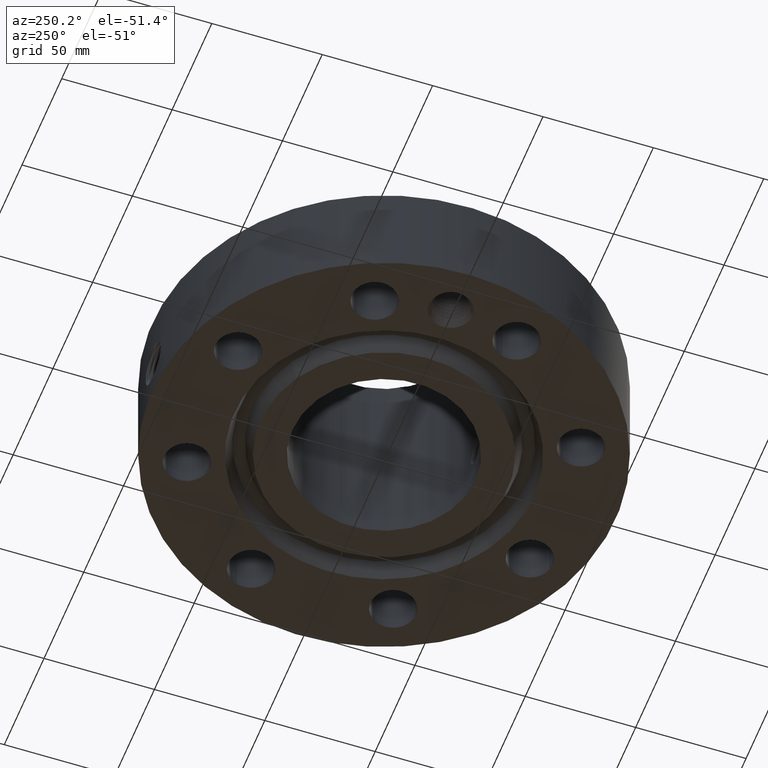
[diagram: clean part render]
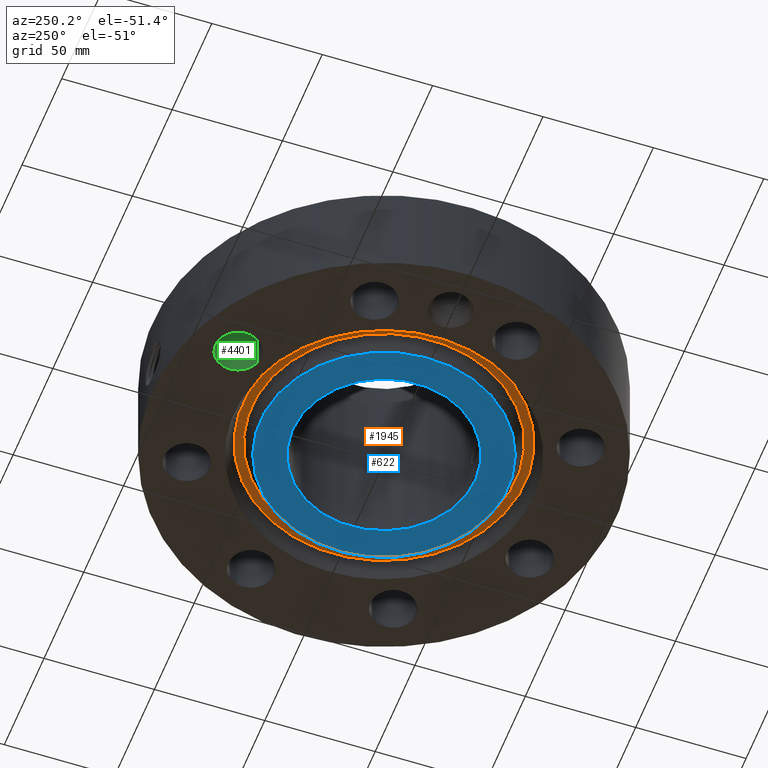
[diagram: same view with three faces highlighted in distinct colors, each labeled with its STEP entity id]
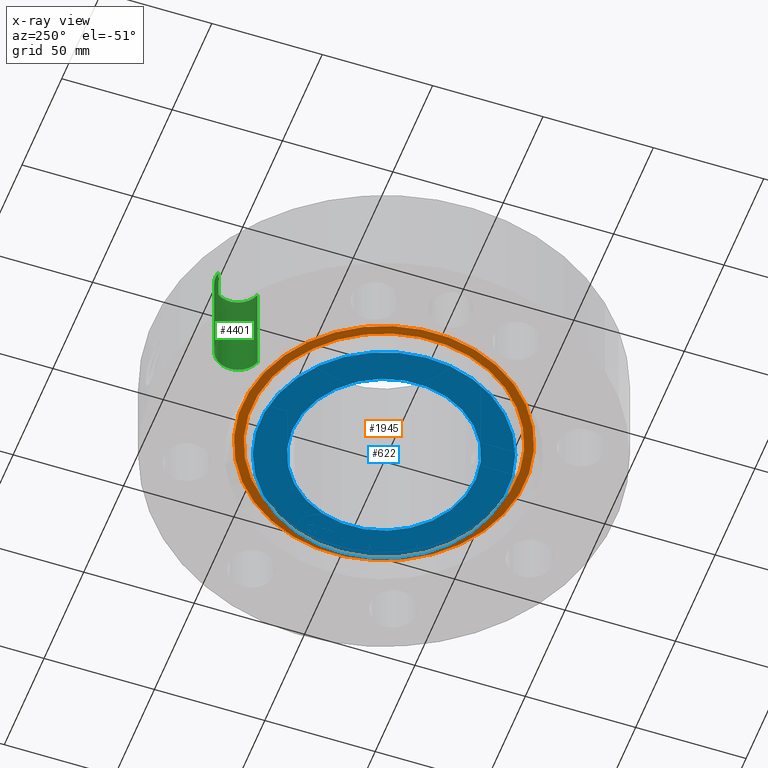
[diagram: x-ray of the same camera — body ghosted, the three highlighted faces saturated]
A machine part, auxiliary view with three faces highlighted in distinct colors.
The next image is the same camera in x-ray (body ghosted, the three faces saturated) — at least one of them is partly hidden behind the body in this view.
Their STEP definitions:

[orange] entity #1945 — the highlighted planar face has unit normal (0, 0, 1).
#1425=AXIS2_PLACEMENT_3D('Circle Axis2P3D',#1423,#1424,$) ;
#1451=AXIS2_PLACEMENT_3D('Circle Axis2P3D',#1449,#1450,$) ;
#1921=AXIS2_PLACEMENT_3D('Plane Axis2P3D',#1918,#1919,#1920) ;
#1925=AXIS2_PLACEMENT_3D('Circle Axis2P3D',#1923,#1924,$) ;
#1934=AXIS2_PLACEMENT_3D('Circle Axis2P3D',#1932,#1933,$) ;
#1423=CARTESIAN_POINT('Axis2P3D Location',(0.,0.,0.313000000001)) ;
#1427=CARTESIAN_POINT('Vertex',(1.12970830473,-2.06791718093,0.313000000001)) ;
#1429=CARTESIAN_POINT('Vertex',(-1.12970830473,2.06791718093,0.313000000001)) ;
#1449=CARTESIAN_POINT('Axis2P3D Location',(0.,0.,0.313000000001)) ;
#1918=CARTESIAN_POINT('Axis2P3D Location',(0.,2.35637906988,0.313000000001)) ;
#1923=CARTESIAN_POINT('Axis2P3D Location',(0.,0.,0.313000000001)) ;
#1927=CARTESIAN_POINT('Vertex',(-1.20749119597,2.2102978083,0.313000000001)) ;
#1929=CARTESIAN_POINT('Vertex',(1.20749119597,-2.2102978083,0.313000000001)) ;
#1932=CARTESIAN_POINT('Axis2P3D Location',(0.,0.,0.313000000001)) ;
#1424=DIRECTION('Axis2P3D Direction',(0.,0.,0.0393700787402)) ;
#1450=DIRECTION('Axis2P3D Direction',(0.,0.,0.0393700787402)) ;
#1919=DIRECTION('Axis2P3D Direction',(0.,0.,0.0393700787402)) ;
#1920=DIRECTION('Axis2P3D XDirection',(0.0393700787402,0.,0.)) ;
#1924=DIRECTION('Axis2P3D Direction',(0.,0.,0.0393700787402)) ;
#1933=DIRECTION('Axis2P3D Direction',(0.,0.,0.0393700787402)) ;
#1938=ORIENTED_EDGE('',*,*,#1931,.F.) ;
#1939=ORIENTED_EDGE('',*,*,#1936,.F.) ;
#1942=ORIENTED_EDGE('',*,*,#1431,.T.) ;
#1943=ORIENTED_EDGE('',*,*,#1453,.T.) ;
#1944=FACE_BOUND('',#1941,.T.) ;
#1945=ADVANCED_FACE('PartBody',(#1940,#1944),#1922,.F.) ;
#1426=CIRCLE('generated circle',#1425,2.35637906988) ;
#1452=CIRCLE('generated circle',#1451,2.35637906988) ;
#1926=CIRCLE('generated circle',#1925,2.51862093014) ;
#1935=CIRCLE('generated circle',#1934,2.51862093014) ;
#1431=EDGE_CURVE('',#1428,#1430,#1426,.T.) ;
#1453=EDGE_CURVE('',#1430,#1428,#1452,.T.) ;
#1931=EDGE_CURVE('',#1928,#1930,#1926,.T.) ;
#1936=EDGE_CURVE('',#1930,#1928,#1935,.T.) ;
#1937=EDGE_LOOP('',(#1938,#1939)) ;
#1941=EDGE_LOOP('',(#1942,#1943)) ;
#1940=FACE_OUTER_BOUND('',#1937,.T.) ;
#1922=PLANE('',#1921) ;
#1428=VERTEX_POINT('',#1427) ;
#1430=VERTEX_POINT('',#1429) ;
#1928=VERTEX_POINT('',#1927) ;
#1930=VERTEX_POINT('',#1929) ;

[blue] entity #622 — the highlighted planar face has unit normal (0, 0, -1).
#252=AXIS2_PLACEMENT_3D('Circle Axis2P3D',#250,#251,$) ;
#543=AXIS2_PLACEMENT_3D('Circle Axis2P3D',#541,#542,$) ;
#598=AXIS2_PLACEMENT_3D('Plane Axis2P3D',#595,#596,#597) ;
#602=AXIS2_PLACEMENT_3D('Circle Axis2P3D',#600,#601,$) ;
#611=AXIS2_PLACEMENT_3D('Circle Axis2P3D',#609,#610,$) ;
#247=CARTESIAN_POINT('Vertex',(0.781463627928,1.43045957589,-1.1189649382E-015)) ;
#250=CARTESIAN_POINT('Axis2P3D Location',(0.,0.,-2.23792987641E-015)) ;
#254=CARTESIAN_POINT('Vertex',(-0.781463627928,-1.43045957589,-1.1189649382E-015)) ;
#541=CARTESIAN_POINT('Axis2P3D Location',(0.,0.,-2.23792987641E-015)) ;
#595=CARTESIAN_POINT('Axis2P3D Location',(0.,1.63000000001,0.)) ;
#600=CARTESIAN_POINT('Axis2P3D Location',(0.,0.,0.)) ;
#604=CARTESIAN_POINT('Vertex',(-1.05617446155,1.93331438385,-8.74191357973E-018)) ;
#606=CARTESIAN_POINT('Vertex',(1.05617446155,-1.93331438385,0.)) ;
#609=CARTESIAN_POINT('Axis2P3D Location',(0.,0.,0.)) ;
#251=DIRECTION('Axis2P3D Direction',(0.,0.,-0.0393700787402)) ;
#542=DIRECTION('Axis2P3D Direction',(0.,0.,-0.0393700787402)) ;
#596=DIRECTION('Axis2P3D Direction',(0.,0.,-0.0393700787402)) ;
#597=DIRECTION('Axis2P3D XDirection',(0.0393700787402,0.,0.)) ;
#601=DIRECTION('Axis2P3D Direction',(0.,0.,-0.0393700787402)) ;
#610=DIRECTION('Axis2P3D Direction',(0.,0.,-0.0393700787402)) ;
#615=ORIENTED_EDGE('',*,*,#608,.T.) ;
#616=ORIENTED_EDGE('',*,*,#613,.T.) ;
#619=ORIENTED_EDGE('',*,*,#256,.F.) ;
#620=ORIENTED_EDGE('',*,*,#545,.F.) ;
#621=FACE_BOUND('',#618,.T.) ;
#622=ADVANCED_FACE('PartBody',(#617,#621),#599,.T.) ;
#253=CIRCLE('generated circle',#252,1.63000000001) ;
#544=CIRCLE('generated circle',#543,1.63000000001) ;
#603=CIRCLE('generated circle',#602,2.20300000001) ;
#612=CIRCLE('generated circle',#611,2.20300000001) ;
#256=EDGE_CURVE('',#248,#255,#253,.T.) ;
#545=EDGE_CURVE('',#255,#248,#544,.T.) ;
#608=EDGE_CURVE('',#605,#607,#603,.T.) ;
#613=EDGE_CURVE('',#607,#605,#612,.T.) ;
#614=EDGE_LOOP('',(#615,#616)) ;
#618=EDGE_LOOP('',(#619,#620)) ;
#617=FACE_OUTER_BOUND('',#614,.T.) ;
#599=PLANE('',#598) ;
#248=VERTEX_POINT('',#247) ;
#255=VERTEX_POINT('',#254) ;
#605=VERTEX_POINT('',#604) ;
#607=VERTEX_POINT('',#606) ;

[green] entity #4401 — the highlighted cylindrical surface (edge-blend (fillet) strip) has radius 10.287 mm, axis along (0, 0, -1).
#3048=AXIS2_PLACEMENT_3D('Circle Axis2P3D',#3046,#3047,$) ;
#4362=AXIS2_PLACEMENT_3D('Cylinder Axis2P3D',#4359,#4360,#4361) ;
#4392=AXIS2_PLACEMENT_3D('Circle Axis2P3D',#4390,#4391,$) ;
#3046=CARTESIAN_POINT('Axis2P3D Location',(-1.26668216113,3.05804125262,1.81300000001)) ;
#3050=CARTESIAN_POINT('Vertex',(-1.38070567125,3.44665885277,1.81300000001)) ;
#3052=CARTESIAN_POINT('Vertex',(-1.15265865102,2.66942365248,1.81300000001)) ;
#4359=CARTESIAN_POINT('Axis2P3D Location',(-1.26668216113,3.05804125262,1.80906299213)) ;
#4364=CARTESIAN_POINT('Line Origine',(-1.15265865102,2.66942365248,0.906500000004)) ;
#4368=CARTESIAN_POINT('Vertex',(-1.15265865102,2.66942365248,0.)) ;
#4375=CARTESIAN_POINT('Vertex',(-1.38070567125,3.44665885277,0.)) ;
#4378=CARTESIAN_POINT('Line Origine',(-1.38070567125,3.44665885277,0.906500000004)) ;
#4390=CARTESIAN_POINT('Axis2P3D Location',(-1.26668216113,3.05804125262,0.)) ;
#3047=DIRECTION('Axis2P3D Direction',(0.,0.,-0.0393700787402)) ;
#4360=DIRECTION('Axis2P3D Direction',(0.,0.,-0.0393700787402)) ;
#4361=DIRECTION('Axis2P3D XDirection',(-0.0110842335096,0.0377775444876,0.)) ;
#4365=DIRECTION('Vector Direction',(0.,0.,-0.0393700787402)) ;
#4379=DIRECTION('Vector Direction',(0.,0.,-0.0393700787402)) ;
#4391=DIRECTION('Axis2P3D Direction',(0.,0.,-0.0393700787402)) ;
#4366=VECTOR('Line Direction',#4365,0.0393700787402) ;
#4380=VECTOR('Line Direction',#4379,0.0393700787402) ;
#4396=ORIENTED_EDGE('',*,*,#4382,.F.) ;
#4397=ORIENTED_EDGE('',*,*,#4394,.T.) ;
#4398=ORIENTED_EDGE('',*,*,#4370,.T.) ;
#4399=ORIENTED_EDGE('',*,*,#3054,.F.) ;
#4401=ADVANCED_FACE('PartBody',(#4400),#4363,.F.) ;
#3049=CIRCLE('generated circle',#3048,0.405000000002) ;
#4393=CIRCLE('generated circle',#4392,0.405000000002) ;
#4363=CYLINDRICAL_SURFACE('generated cylinder',#4362,0.405000000002) ;
#3054=EDGE_CURVE('',#3051,#3053,#3049,.T.) ;
#4370=EDGE_CURVE('',#4369,#3053,#4367,.F.) ;
#4382=EDGE_CURVE('',#4376,#3051,#4381,.F.) ;
#4394=EDGE_CURVE('',#4376,#4369,#4393,.T.) ;
#4395=EDGE_LOOP('',(#4396,#4397,#4398,#4399)) ;
#4400=FACE_OUTER_BOUND('',#4395,.T.) ;
#4367=LINE('Line',#4364,#4366) ;
#4381=LINE('Line',#4378,#4380) ;
#3051=VERTEX_POINT('',#3050) ;
#3053=VERTEX_POINT('',#3052) ;
#4369=VERTEX_POINT('',#4368) ;
#4376=VERTEX_POINT('',#4375) ;